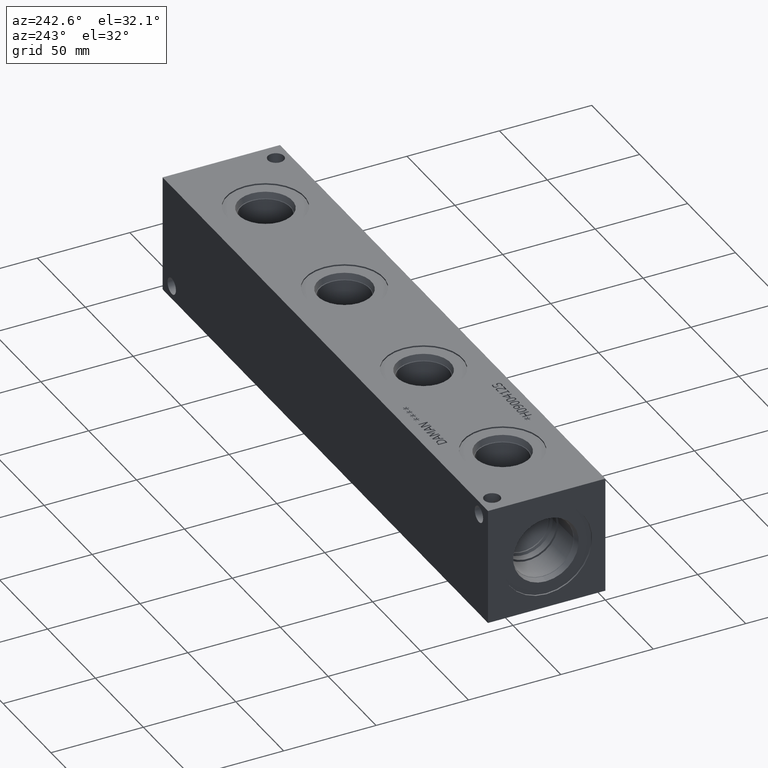
[diagram: clean part render]
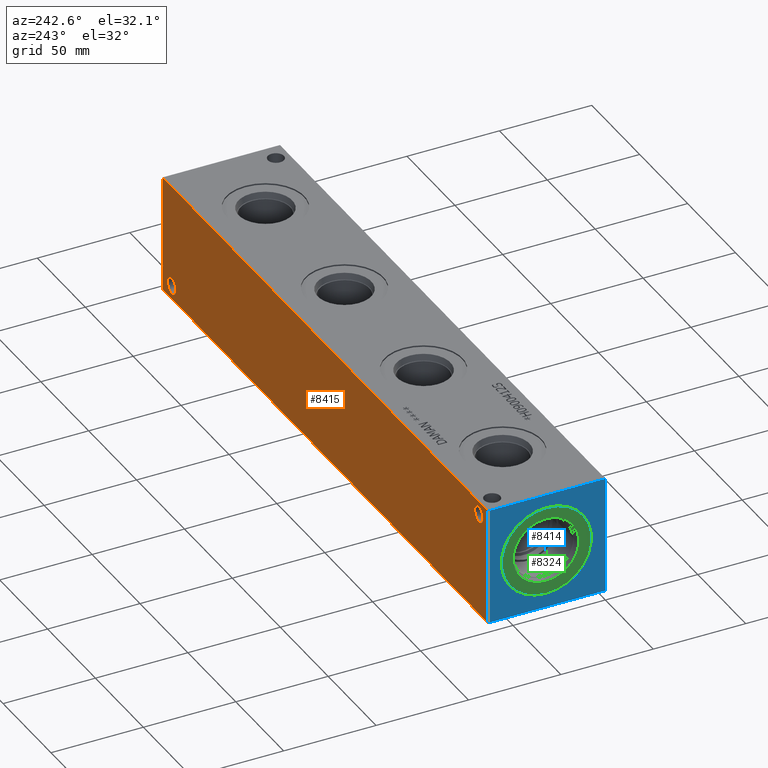
[diagram: same view with three faces highlighted in distinct colors, each labeled with its STEP entity id]
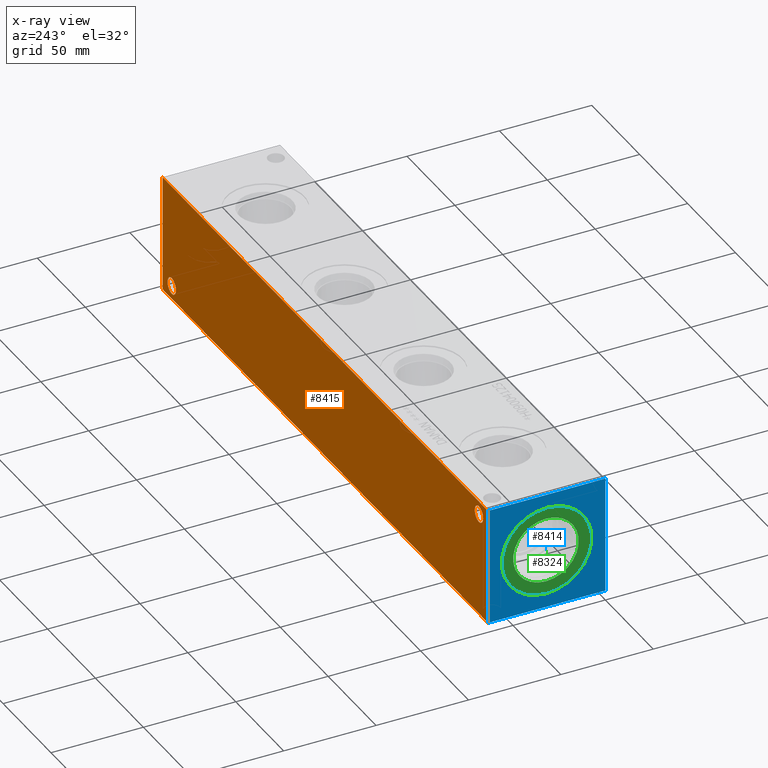
[diagram: x-ray of the same camera — body ghosted, the three highlighted faces saturated]
A machine part, auxiliary view with three faces highlighted in distinct colors.
The next image is the same camera in x-ray (body ghosted, the three faces saturated) — at least one of them is partly hidden behind the body in this view.
Their STEP definitions:

[orange] entity #8415 — the highlighted planar face has unit normal (0, 1, 0).
#193=CIRCLE('',#8752,4.3688);
#196=CIRCLE('',#8762,4.3688);
#366=FACE_BOUND('',#1593,.T.);
#367=FACE_BOUND('',#1594,.T.);
#1114=FACE_OUTER_BOUND('',#1592,.T.);
#1592=EDGE_LOOP('',(#7410,#7411,#7412,#7413));
#1593=EDGE_LOOP('',(#7414));
#1594=EDGE_LOOP('',(#7415));
#1891=LINE('',#12822,#2645);
#2356=LINE('',#14677,#3110);
#2357=LINE('',#14680,#3111);
#2358=LINE('',#14681,#3112);
#2645=VECTOR('',#9420,10.);
#3110=VECTOR('',#10815,10.);
#3111=VECTOR('',#10818,10.);
#3112=VECTOR('',#10819,10.);
#3416=VERTEX_POINT('',#12819);
#3417=VERTEX_POINT('',#12821);
#3761=VERTEX_POINT('',#14113);
#3766=VERTEX_POINT('',#14131);
#3900=VERTEX_POINT('',#14673);
#3902=VERTEX_POINT('',#14679);
#4353=EDGE_CURVE('',#3416,#3417,#1891,.T.);
#4860=EDGE_CURVE('',#3761,#3761,#193,.T.);
#4870=EDGE_CURVE('',#3766,#3766,#196,.T.);
#5079=EDGE_CURVE('',#3900,#3417,#2356,.T.);
#5080=EDGE_CURVE('',#3902,#3900,#2357,.T.);
#5081=EDGE_CURVE('',#3902,#3416,#2358,.T.);
#7410=ORIENTED_EDGE('',*,*,#5080,.T.);
#7411=ORIENTED_EDGE('',*,*,#5079,.T.);
#7412=ORIENTED_EDGE('',*,*,#4353,.F.);
#7413=ORIENTED_EDGE('',*,*,#5081,.F.);
#7414=ORIENTED_EDGE('',*,*,#4860,.T.);
#7415=ORIENTED_EDGE('',*,*,#4870,.T.);
#7684=PLANE('',#8976);
#8415=ADVANCED_FACE('',(#1114,#366,#367),#7684,.T.);
#8752=AXIS2_PLACEMENT_3D('',#14115,#10305,#10306);
#8762=AXIS2_PLACEMENT_3D('',#14133,#10328,#10329);
#8976=AXIS2_PLACEMENT_3D('',#14678,#10816,#10817);
#9420=DIRECTION('',(-1.,0.,0.));
#10305=DIRECTION('center_axis',(0.,-1.,0.));
#10306=DIRECTION('ref_axis',(1.,0.,0.));
#10328=DIRECTION('center_axis',(0.,-1.,0.));
#10329=DIRECTION('ref_axis',(1.,0.,0.));
#10815=DIRECTION('',(0.,0.,1.));
#10816=DIRECTION('center_axis',(0.,1.,0.));
#10817=DIRECTION('ref_axis',(-1.,0.,0.));
#10818=DIRECTION('',(-1.,0.,0.));
#10819=DIRECTION('',(0.,0.,1.));
#12819=CARTESIAN_POINT('',(339.725,63.5,63.5));
#12821=CARTESIAN_POINT('',(0.,63.5,63.5));
#12822=CARTESIAN_POINT('',(339.725,63.5,63.5));
#14113=CARTESIAN_POINT('',(325.8312,63.5,7.1374));
#14115=CARTESIAN_POINT('Origin',(330.2,63.5,7.1374));
#14131=CARTESIAN_POINT('',(5.1562,63.5,56.3626));
#14133=CARTESIAN_POINT('Origin',(9.525,63.5,56.3626));
#14673=CARTESIAN_POINT('',(0.,63.5,0.));
#14677=CARTESIAN_POINT('',(0.,63.5,0.));
#14678=CARTESIAN_POINT('Origin',(339.725,63.5,0.));
#14679=CARTESIAN_POINT('',(339.725,63.5,0.));
#14680=CARTESIAN_POINT('',(339.725,63.5,0.));
#14681=CARTESIAN_POINT('',(339.725,63.5,0.));

[blue] entity #8414 — the highlighted planar face has unit normal (-1, 0, 0).
#181=CIRCLE('',#8730,24.5618);
#182=CIRCLE('',#8731,24.5618);
#365=FACE_BOUND('',#1591,.T.);
#1113=FACE_OUTER_BOUND('',#1590,.T.);
#1590=EDGE_LOOP('',(#7404,#7405,#7406,#7407));
#1591=EDGE_LOOP('',(#7408,#7409));
#1892=LINE('',#12823,#2646);
#2354=LINE('',#14675,#3108);
#2355=LINE('',#14676,#3109);
#2356=LINE('',#14677,#3110);
#2646=VECTOR('',#9421,10.);
#3108=VECTOR('',#10813,10.);
#3109=VECTOR('',#10814,10.);
#3110=VECTOR('',#10815,10.);
#3414=VERTEX_POINT('',#12816);
#3417=VERTEX_POINT('',#12821);
#3747=VERTEX_POINT('',#14072);
#3748=VERTEX_POINT('',#14073);
#3900=VERTEX_POINT('',#14673);
#3901=VERTEX_POINT('',#14674);
#4354=EDGE_CURVE('',#3417,#3414,#1892,.T.);
#4838=EDGE_CURVE('',#3747,#3748,#181,.T.);
#4839=EDGE_CURVE('',#3748,#3747,#182,.T.);
#5077=EDGE_CURVE('',#3900,#3901,#2354,.T.);
#5078=EDGE_CURVE('',#3901,#3414,#2355,.T.);
#5079=EDGE_CURVE('',#3900,#3417,#2356,.T.);
#7404=ORIENTED_EDGE('',*,*,#5077,.T.);
#7405=ORIENTED_EDGE('',*,*,#5078,.T.);
#7406=ORIENTED_EDGE('',*,*,#4354,.F.);
#7407=ORIENTED_EDGE('',*,*,#5079,.F.);
#7408=ORIENTED_EDGE('',*,*,#4838,.T.);
#7409=ORIENTED_EDGE('',*,*,#4839,.T.);
#7683=PLANE('',#8975);
#8414=ADVANCED_FACE('',(#1113,#365),#7683,.T.);
#8730=AXIS2_PLACEMENT_3D('',#14074,#10255,#10256);
#8731=AXIS2_PLACEMENT_3D('',#14075,#10257,#10258);
#8975=AXIS2_PLACEMENT_3D('',#14672,#10811,#10812);
#9421=DIRECTION('',(0.,-1.,0.));
#10255=DIRECTION('center_axis',(1.,0.,0.));
#10256=DIRECTION('ref_axis',(0.,0.,1.));
#10257=DIRECTION('center_axis',(1.,0.,0.));
#10258=DIRECTION('ref_axis',(0.,0.,1.));
#10811=DIRECTION('center_axis',(-1.,0.,0.));
#10812=DIRECTION('ref_axis',(0.,-1.,0.));
#10813=DIRECTION('',(0.,-1.,0.));
#10814=DIRECTION('',(0.,0.,1.));
#10815=DIRECTION('',(0.,0.,1.));
#12816=CARTESIAN_POINT('',(0.,0.,63.5));
#12821=CARTESIAN_POINT('',(0.,63.5,63.5));
#12823=CARTESIAN_POINT('',(0.,63.5,63.5));
#14072=CARTESIAN_POINT('',(0.,31.75,56.3118));
#14073=CARTESIAN_POINT('',(0.,31.75,7.1882));
#14074=CARTESIAN_POINT('Origin',(0.,31.75,31.75));
#14075=CARTESIAN_POINT('Origin',(0.,31.75,31.75));
#14672=CARTESIAN_POINT('Origin',(0.,63.5,0.));
#14673=CARTESIAN_POINT('',(0.,63.5,0.));
#14674=CARTESIAN_POINT('',(0.,0.,0.));
#14675=CARTESIAN_POINT('',(0.,63.5,0.));
#14676=CARTESIAN_POINT('',(0.,0.,0.));
#14677=CARTESIAN_POINT('',(0.,63.5,0.));

[green] entity #8324 — the highlighted planar face has unit normal (1, 0, 0).
#183=CIRCLE('',#8732,24.5618);
#184=CIRCLE('',#8733,24.5618);
#185=CIRCLE('',#8735,17.7546);
#186=CIRCLE('',#8736,17.7546);
#356=FACE_BOUND('',#1492,.T.);
#1023=FACE_OUTER_BOUND('',#1491,.T.);
#1491=EDGE_LOOP('',(#6925,#6926));
#1492=EDGE_LOOP('',(#6927,#6928));
#3749=VERTEX_POINT('',#14076);
#3750=VERTEX_POINT('',#14078);
#3751=VERTEX_POINT('',#14082);
#3752=VERTEX_POINT('',#14083);
#4841=EDGE_CURVE('',#3749,#3750,#183,.T.);
#4842=EDGE_CURVE('',#3750,#3749,#184,.T.);
#4843=EDGE_CURVE('',#3751,#3752,#185,.T.);
#4844=EDGE_CURVE('',#3752,#3751,#186,.T.);
#6925=ORIENTED_EDGE('',*,*,#4842,.F.);
#6926=ORIENTED_EDGE('',*,*,#4841,.F.);
#6927=ORIENTED_EDGE('',*,*,#4843,.T.);
#6928=ORIENTED_EDGE('',*,*,#4844,.T.);
#7666=PLANE('',#8734);
#8324=ADVANCED_FACE('',(#1023,#356),#7666,.F.);
#8732=AXIS2_PLACEMENT_3D('',#14079,#10260,#10261);
#8733=AXIS2_PLACEMENT_3D('',#14080,#10262,#10263);
#8734=AXIS2_PLACEMENT_3D('',#14081,#10264,#10265);
#8735=AXIS2_PLACEMENT_3D('',#14084,#10266,#10267);
#8736=AXIS2_PLACEMENT_3D('',#14085,#10268,#10269);
#10260=DIRECTION('center_axis',(1.,0.,0.));
#10261=DIRECTION('ref_axis',(0.,0.,-1.));
#10262=DIRECTION('center_axis',(1.,0.,0.));
#10263=DIRECTION('ref_axis',(0.,0.,-1.));
#10264=DIRECTION('center_axis',(1.,0.,0.));
#10265=DIRECTION('ref_axis',(0.,0.,-1.));
#10266=DIRECTION('center_axis',(1.,0.,0.));
#10267=DIRECTION('ref_axis',(0.,0.,-1.));
#10268=DIRECTION('center_axis',(1.,0.,0.));
#10269=DIRECTION('ref_axis',(0.,0.,-1.));
#14076=CARTESIAN_POINT('',(0.7874,31.75,7.1882));
#14078=CARTESIAN_POINT('',(0.7874,31.75,56.3118));
#14079=CARTESIAN_POINT('Origin',(0.7874,31.75,31.75));
#14080=CARTESIAN_POINT('Origin',(0.7874,31.75,31.75));
#14081=CARTESIAN_POINT('Origin',(0.7874,31.75,49.5046));
#14082=CARTESIAN_POINT('',(0.7874,31.75,49.5046));
#14083=CARTESIAN_POINT('',(0.787400000000001,31.75,13.9954));
#14084=CARTESIAN_POINT('Origin',(0.7874,31.75,31.75));
#14085=CARTESIAN_POINT('Origin',(0.7874,31.75,31.75));